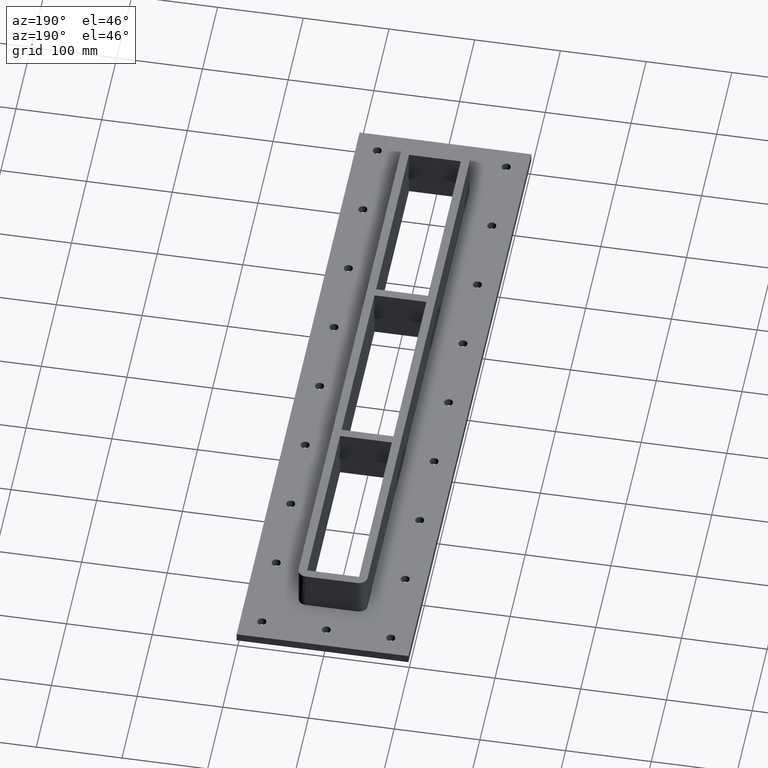
[diagram: clean part render]
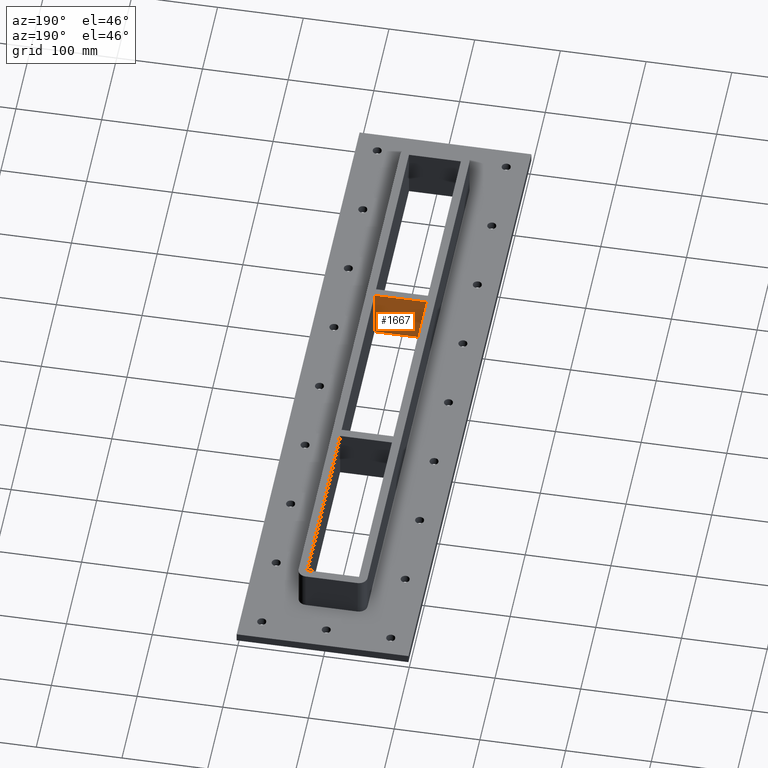
[diagram: same view with one face highlighted and labeled with its STEP entity id]
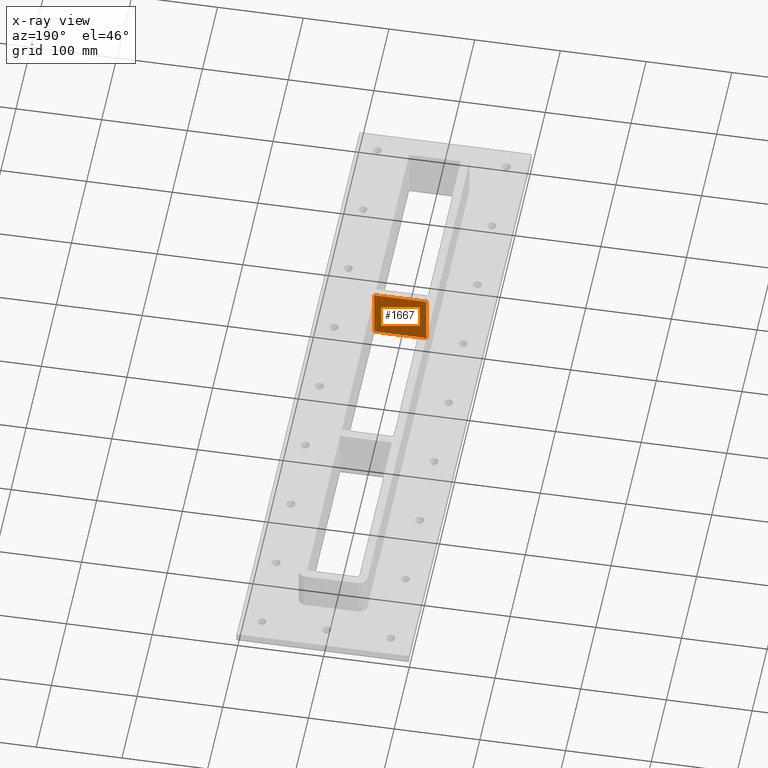
[diagram: x-ray of the same camera — body ghosted, the highlighted face saturated]
A machine part, auxiliary view. The second image highlights one B-rep face of the part: STEP entity #1667.
The next image is the same camera in x-ray: the body ghosted, the highlighted face saturated — about 0% of this face is hidden behind the body in this view.
In plain terms, the highlighted planar face has unit normal (0, -1, 0).
Its self-contained STEP definition (entity closure, byte-faithful):
#1342=CARTESIAN_POINT('',(-30.249999999999968,-109.00000000000273,-30.0));
#1343=VERTEX_POINT('',#1342);
#1350=CARTESIAN_POINT('',(30.250000000000039,-109.00000000000273,-30.0));
#1351=VERTEX_POINT('',#1350);
#1352=CARTESIAN_POINT('',(-30.249999999999968,-109.00000000000273,-30.0));
#1353=DIRECTION('',(1.0,0.0,0.0));
#1354=VECTOR('',#1353,60.500000000000007);
#1355=LINE('',#1352,#1354);
#1356=EDGE_CURVE('',#1343,#1351,#1355,.T.);
#1627=CARTESIAN_POINT('',(-30.249999999999968,-109.00000000000273,30.0));
#1628=VERTEX_POINT('',#1627);
#1635=CARTESIAN_POINT('',(-30.249999999999968,-109.00000000000273,30.0));
#1636=DIRECTION('',(0.0,0.0,-1.0));
#1637=VECTOR('',#1636,60.0);
#1638=LINE('',#1635,#1637);
#1639=EDGE_CURVE('',#1628,#1343,#1638,.T.);
#1644=CARTESIAN_POINT('',(30.250000000000039,-109.00000000000273,30.0));
#1645=DIRECTION('',(0.0,-1.0,0.0));
#1646=DIRECTION('',(-1.0,0.0,0.0));
#1647=AXIS2_PLACEMENT_3D('',#1644,#1645,#1646);
#1648=PLANE('',#1647);
#1649=ORIENTED_EDGE('',*,*,#1356,.F.);
#1650=ORIENTED_EDGE('',*,*,#1639,.F.);
#1651=CARTESIAN_POINT('',(30.250000000000039,-109.00000000000273,30.0));
#1652=VERTEX_POINT('',#1651);
#1653=CARTESIAN_POINT('',(30.250000000000039,-109.00000000000273,30.0));
#1654=DIRECTION('',(-1.0,0.0,0.0));
#1655=VECTOR('',#1654,60.500000000000007);
#1656=LINE('',#1653,#1655);
#1657=EDGE_CURVE('',#1652,#1628,#1656,.T.);
#1658=ORIENTED_EDGE('',*,*,#1657,.F.);
#1659=CARTESIAN_POINT('',(30.250000000000039,-109.00000000000273,30.0));
#1660=DIRECTION('',(0.0,0.0,-1.0));
#1661=VECTOR('',#1660,60.0);
#1662=LINE('',#1659,#1661);
#1663=EDGE_CURVE('',#1652,#1351,#1662,.T.);
#1664=ORIENTED_EDGE('',*,*,#1663,.T.);
#1665=EDGE_LOOP('',(#1649,#1650,#1658,#1664));
#1666=FACE_OUTER_BOUND('',#1665,.T.);
#1667=ADVANCED_FACE('',(#1666),#1648,.F.);